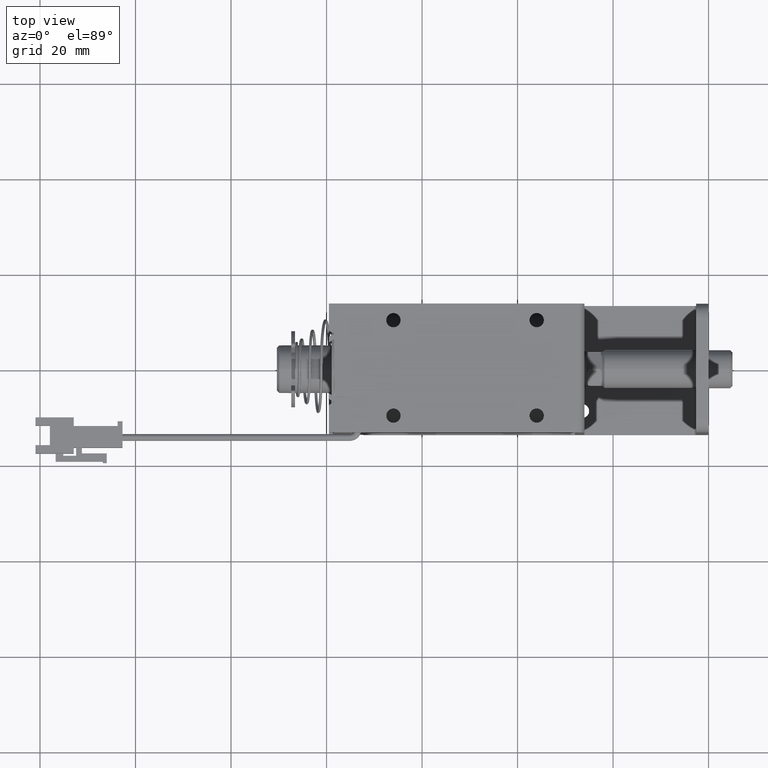
[diagram: clean part render]
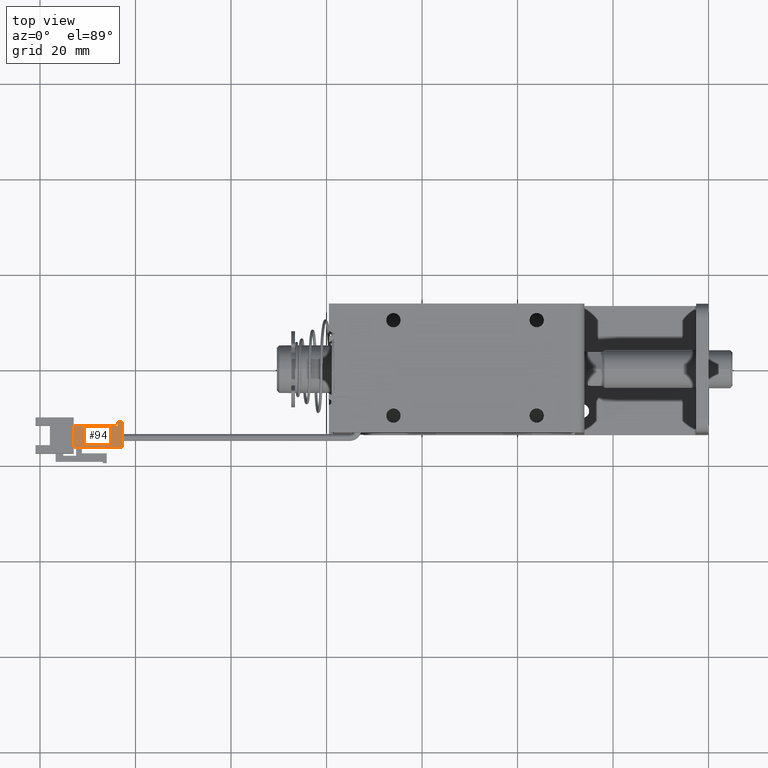
[diagram: same view with one face highlighted and labeled with its STEP entity id]
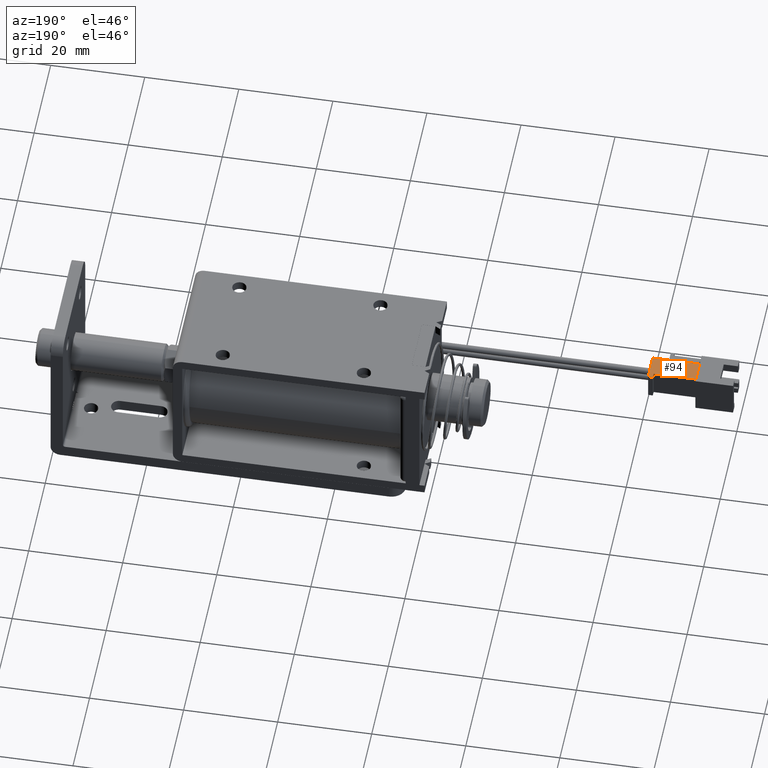
[diagram: same view with one face highlighted and labeled with its STEP entity id]
A machine part, top view. The second image highlights one B-rep face of the part: STEP entity #94.
A second angle (auxiliary view) of the same face is appended — the face is thin or edge-on in the first view.
In plain terms, the highlighted planar face has unit normal (0, 0, -1).
Its self-contained STEP definition (entity closure, byte-faithful):
#94=ADVANCED_FACE('',(#947),#946,.F.);
#946=PLANE('',#4181);
#947=FACE_OUTER_BOUND('',#4182,.T.);
#4178=CARTESIAN_POINT('',(-1.33956061680E+002,-1.04000000000E+001,2.75000000000E+000));
#4179=DIRECTION('',(0.00000000000E+000,0.00000000000E+000,-1.00000000000E+000));
#4180=DIRECTION('',(1.00000000000E+000,0.00000000000E+000,0.00000000000E+000));
#4181=AXIS2_PLACEMENT_3D('',#4178,#4179,#4180);
#4182=EDGE_LOOP('',(#7307,#7308,#7309,#7310,#7311,#7312));
#7307=ORIENTED_EDGE('',*,*,#9014,.F.);
#7308=ORIENTED_EDGE('',*,*,#9015,.F.);
#7309=ORIENTED_EDGE('',*,*,#9016,.F.);
#7310=ORIENTED_EDGE('',*,*,#9017,.T.);
#7311=ORIENTED_EDGE('',*,*,#9018,.T.);
#7312=ORIENTED_EDGE('',*,*,#9019,.T.);
#9014=EDGE_CURVE('',#11466,#11467,#11468,.T.);
#9015=EDGE_CURVE('',#11474,#11466,#11475,.T.);
#9016=EDGE_CURVE('',#11481,#11474,#11482,.T.);
#9017=EDGE_CURVE('',#11481,#11488,#11489,.T.);
#9018=EDGE_CURVE('',#11488,#11495,#11496,.T.);
#9019=EDGE_CURVE('',#11495,#11467,#11502,.T.);
#11466=VERTEX_POINT('',#16799);
#11467=VERTEX_POINT('',#16800);
#11468=LINE('',#16801,#16802);
#11474=VERTEX_POINT('',#16804);
#11475=LINE('',#16805,#16806);
#11481=VERTEX_POINT('',#16808);
#11482=LINE('',#16809,#16810);
#11488=VERTEX_POINT('',#16812);
#11489=LINE('',#16813,#16814);
#11495=VERTEX_POINT('',#16816);
#11496=LINE('',#16817,#16818);
#11502=LINE('',#16820,#16821);
#16799=CARTESIAN_POINT('',(-1.32936061680E+002,-1.64500000000E+001,2.75000000000E+000));
#16800=CARTESIAN_POINT('',(-1.32936061680E+002,-1.19500000000E+001,2.75000000000E+000));
#16801=CARTESIAN_POINT('',(-1.32936061680E+002,-1.64500000000E+001,2.75000000000E+000));
#16802=VECTOR('',#16803,4.50000000000E+000);
#16803=DIRECTION('',(0.00000000000E+000,1.00000000000E+000,0.00000000000E+000));
#16804=CARTESIAN_POINT('',(-1.22736061680E+002,-1.64500000000E+001,2.75000000000E+000));
#16805=CARTESIAN_POINT('',(-1.22736061680E+002,-1.64500000000E+001,2.75000000000E+000));
#16806=VECTOR('',#16807,1.02000000000E+001);
#16807=DIRECTION('',(-1.00000000000E+000,0.00000000000E+000,0.00000000000E+000));
#16808=CARTESIAN_POINT('',(-1.22736061680E+002,-1.09500000000E+001,2.75000000000E+000));
#16809=CARTESIAN_POINT('',(-1.22736061680E+002,-1.09500000000E+001,2.75000000000E+000));
#16810=VECTOR('',#16811,5.50000000000E+000);
#16811=DIRECTION('',(0.00000000000E+000,-1.00000000000E+000,0.00000000000E+000));
#16812=CARTESIAN_POINT('',(-1.23736061680E+002,-1.09500000000E+001,2.75000000000E+000));
#16813=CARTESIAN_POINT('',(-1.22736061680E+002,-1.09500000000E+001,2.75000000000E+000));
#16814=VECTOR('',#16815,1.00000000000E+000);
#16815=DIRECTION('',(-1.00000000000E+000,0.00000000000E+000,0.00000000000E+000));
#16816=CARTESIAN_POINT('',(-1.23736061680E+002,-1.19500000000E+001,2.75000000000E+000));
#16817=CARTESIAN_POINT('',(-1.23736061680E+002,-1.09500000000E+001,2.75000000000E+000));
#16818=VECTOR('',#16819,1.00000000000E+000);
#16819=DIRECTION('',(0.00000000000E+000,-1.00000000000E+000,0.00000000000E+000));
#16820=CARTESIAN_POINT('',(-1.23736061680E+002,-1.19500000000E+001,2.75000000000E+000));
#16821=VECTOR('',#16822,9.20000000000E+000);
#16822=DIRECTION('',(-1.00000000000E+000,0.00000000000E+000,0.00000000000E+000));